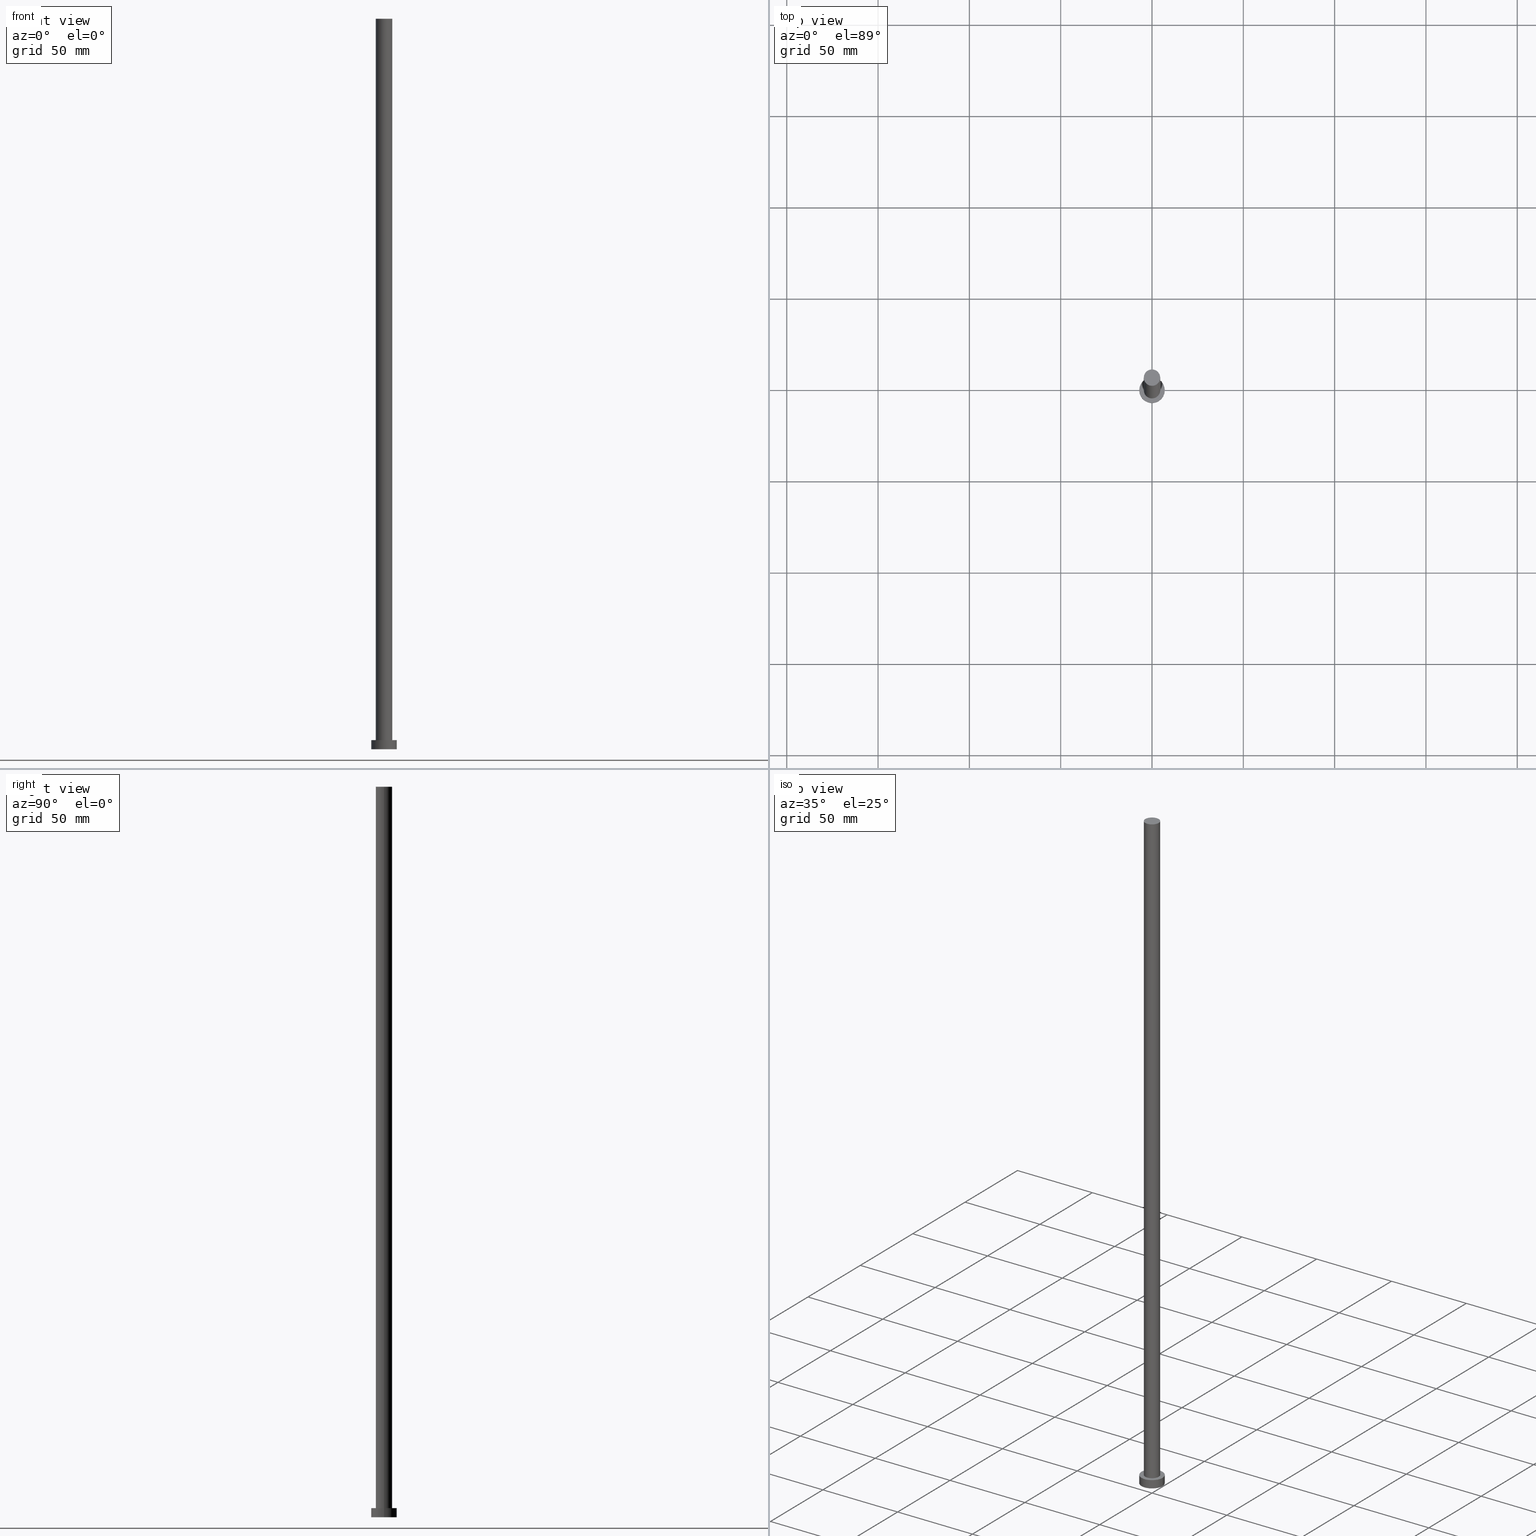
[diagram: canonical four-view strip — front | top / right | iso, engineering-drawing reading convention]
A machine part, canonical four-view strip (front | top / right | iso — engineering-drawing reading convention). The complete STEP part file that produces these views, byte-faithful:
ISO-10303-21;
HEADER;
FILE_DESCRIPTION (( 'STEP AP203' ),
    '1' );
FILE_NAME ('af12.STEP',
    '2023-02-13T12:07:59',
    ( '' ),
    ( '' ),
    'SwSTEP 2.0',
    'SolidWorks 2019',
    '' );
FILE_SCHEMA (( 'CONFIG_CONTROL_DESIGN' ));
ENDSEC;

DATA;
#1 = EDGE_LOOP ( 'NONE', ( #127, #47 ) ) ;
#2 = VERTEX_POINT ( 'NONE', #144 ) ;
#3 = DESIGN_CONTEXT ( 'detailed design', #35, 'design' ) ;
#4 = ORIENTED_EDGE ( 'NONE', *, *, #179, .T. ) ;
#5 = CARTESIAN_POINT ( 'NONE',  ( 4.500000000000000888, 5.510910596163088569E-16, 400.0000000000000000 ) ) ;
#6 = CC_DESIGN_PERSON_AND_ORGANIZATION_ASSIGNMENT ( #9, #8, ( #225 ) ) ;
#7 = VERTEX_POINT ( 'NONE', #172 ) ;
#8 = PERSON_AND_ORGANIZATION_ROLE ( 'creator' ) ;
#9 = PERSON_AND_ORGANIZATION ( #131, #162 ) ;
#10 = CLOSED_SHELL ( 'NONE', ( #113, #105, #240, #207, #27, #137, #167 ) ) ;
#11 = DATE_TIME_ROLE ( 'classification_date' ) ;
#12 = CYLINDRICAL_SURFACE ( 'NONE', #140, 7.000000000000000000 ) ;
#13 = DIRECTION ( 'NONE',  ( 1.000000000000000000, 0.000000000000000000, 0.000000000000000000 ) ) ;
#14 = FACE_OUTER_BOUND ( 'NONE', #95, .T. ) ;
#15 = CALENDAR_DATE ( 2023, 13, 2 ) ;
#16 = CARTESIAN_POINT ( 'NONE',  ( 0.000000000000000000, 0.000000000000000000, 5.000000000000000000 ) ) ;
#17 = DIRECTION ( 'NONE',  ( 1.000000000000000000, 0.000000000000000000, 0.000000000000000000 ) ) ;
#18 = DIRECTION ( 'NONE',  ( 0.000000000000000000, 0.000000000000000000, 1.000000000000000000 ) ) ;
#19 = ORIENTED_EDGE ( 'NONE', *, *, #60, .F. ) ;
#20 = AXIS2_PLACEMENT_3D ( 'NONE', #99, #98, #13 ) ;
#21 = DIRECTION ( 'NONE',  ( -0.000000000000000000, -0.000000000000000000, -1.000000000000000000 ) ) ;
#22 = CARTESIAN_POINT ( 'NONE',  ( -7.000000000000000000, 0.000000000000000000, 0.000000000000000000 ) ) ;
#23 = APPROVAL_ROLE ( '' ) ;
#24 = CC_DESIGN_SECURITY_CLASSIFICATION ( #129, ( #44 ) ) ;
#25 = CC_DESIGN_DATE_AND_TIME_ASSIGNMENT ( #198, #118, ( #225 ) ) ;
#26 = CALENDAR_DATE ( 2023, 13, 2 ) ;
#27 = ADVANCED_FACE ( 'NONE', ( #38 ), #215, .F. ) ;
#28 = FACE_OUTER_BOUND ( 'NONE', #134, .T. ) ;
#29 = APPROVAL_STATUS ( 'not_yet_approved' ) ;
#30 = VERTEX_POINT ( 'NONE', #114 ) ;
#31 = AXIS2_PLACEMENT_3D ( 'NONE', #247, #18, #17 ) ;
#32 = MECHANICAL_CONTEXT ( 'NONE', #122, 'mechanical' ) ;
#33 = CARTESIAN_POINT ( 'NONE',  ( 0.000000000000000000, 0.000000000000000000, 400.0000000000000000 ) ) ;
#34 = DIRECTION ( 'NONE',  ( 0.000000000000000000, 0.000000000000000000, 1.000000000000000000 ) ) ;
#35 = APPLICATION_CONTEXT ( 'configuration controlled 3d designs of mechanical parts and assemblies' ) ;
#36 = CARTESIAN_POINT ( 'NONE',  ( 0.000000000000000000, 0.000000000000000000, 5.000000000000000000 ) ) ;
#37 = DIRECTION ( 'NONE',  ( 1.000000000000000000, 0.000000000000000000, -0.000000000000000000 ) ) ;
#38 = FACE_OUTER_BOUND ( 'NONE', #255, .T. ) ;
#39 = CIRCLE ( 'NONE', #120, 7.000000000000000000 ) ;
#40 = VERTEX_POINT ( 'NONE', #22 ) ;
#41 = CALENDAR_DATE ( 2023, 13, 2 ) ;
#42 = EDGE_CURVE ( 'NONE', #7, #90, #241, .T. ) ;
#43 = CIRCLE ( 'NONE', #72, 4.500000000000000888 ) ;
#44 = PRODUCT_DEFINITION_FORMATION_WITH_SPECIFIED_SOURCE ( 'LIBOVOLN�', '', #157, .NOT_KNOWN. ) ;
#45 = PERSON_AND_ORGANIZATION ( #131, #162 ) ;
#46 = DIRECTION ( 'NONE',  ( -0.000000000000000000, -0.000000000000000000, -1.000000000000000000 ) ) ;
#47 = ORIENTED_EDGE ( 'NONE', *, *, #235, .T. ) ;
#48 = VECTOR ( 'NONE', #243, 1000.000000000000000 ) ;
#49 = COORDINATED_UNIVERSAL_TIME_OFFSET ( 1, 0, .AHEAD. ) ;
#50 = FACE_BOUND ( 'NONE', #213, .T. ) ;
#51 = DIRECTION ( 'NONE',  ( 1.000000000000000000, 0.000000000000000000, -0.000000000000000000 ) ) ;
#52 = CARTESIAN_POINT ( 'NONE',  ( 0.000000000000000000, 0.000000000000000000, 5.000000000000000000 ) ) ;
#53 = DIRECTION ( 'NONE',  ( 1.000000000000000000, 0.000000000000000000, 0.000000000000000000 ) ) ;
#54 = VERTEX_POINT ( 'NONE', #5 ) ;
#55 = VERTEX_POINT ( 'NONE', #156 ) ;
#56 = CYLINDRICAL_SURFACE ( 'NONE', #76, 4.500000000000000888 ) ;
#57 = VECTOR ( 'NONE', #239, 1000.000000000000000 ) ;
#58 = CARTESIAN_POINT ( 'NONE',  ( 0.000000000000000000, 0.000000000000000000, 0.000000000000000000 ) ) ;
#59 = AXIS2_PLACEMENT_3D ( 'NONE', #89, #88, #253 ) ;
#60 = EDGE_CURVE ( 'NONE', #40, #90, #233, .T. ) ;
#61 = APPLICATION_PROTOCOL_DEFINITION ( 'international standard', 'config_control_design', 1994, #122 ) ;
#62 = LINE ( 'NONE', #224, #201 ) ;
#63 = DATE_AND_TIME ( #128, #135 ) ;
#64 = CARTESIAN_POINT ( 'NONE',  ( 4.500000000000000888, 5.510910596163088569E-16, 5.000000000000000000 ) ) ;
#65 = AXIS2_PLACEMENT_3D ( 'NONE', #206, #107, #183 ) ;
#66 = DIRECTION ( 'NONE',  ( 0.000000000000000000, 0.000000000000000000, 1.000000000000000000 ) ) ;
#67 = APPROVAL ( #181, 'NEUR�EN�' ) ;
#68 = FACE_OUTER_BOUND ( 'NONE', #1, .T. ) ;
#69 = EDGE_CURVE ( 'NONE', #54, #234, #138, .T. ) ;
#70 = CIRCLE ( 'NONE', #91, 4.500000000000000888 ) ;
#71 = APPROVAL ( #29, 'NEUR�EN�' ) ;
#72 = AXIS2_PLACEMENT_3D ( 'NONE', #33, #205, #104 ) ;
#73 = ORIENTED_EDGE ( 'NONE', *, *, #42, .T. ) ;
#74 = CC_DESIGN_APPROVAL ( #71, ( #129 ) ) ;
#75 = ORIENTED_EDGE ( 'NONE', *, *, #254, .F. ) ;
#76 = AXIS2_PLACEMENT_3D ( 'NONE', #217, #21, #246 ) ;
#77 = CARTESIAN_POINT ( 'NONE',  ( 0.000000000000000000, 0.000000000000000000, 0.000000000000000000 ) ) ;
#78 = APPROVAL_ROLE ( '' ) ;
#79 = DATE_AND_TIME ( #142, #185 ) ;
#80 = PERSON_AND_ORGANIZATION ( #131, #162 ) ;
#81 = LOCAL_TIME ( 13, 7, 59.00000000000000000, #197 ) ;
#82 = DIRECTION ( 'NONE',  ( 1.000000000000000000, 0.000000000000000000, 0.000000000000000000 ) ) ;
#83 = APPROVAL_STATUS ( 'not_yet_approved' ) ;
#84 = DIRECTION ( 'NONE',  ( -0.000000000000000000, -0.000000000000000000, -1.000000000000000000 ) ) ;
#85 = EDGE_CURVE ( 'NONE', #30, #40, #155, .T. ) ;
#86 = COORDINATED_UNIVERSAL_TIME_OFFSET ( 1, 0, .AHEAD. ) ;
#87 = CARTESIAN_POINT ( 'NONE',  ( 0.000000000000000000, 0.000000000000000000, 5.000000000000000000 ) ) ;
#88 = DIRECTION ( 'NONE',  ( 0.000000000000000000, 0.000000000000000000, 1.000000000000000000 ) ) ;
#89 = CARTESIAN_POINT ( 'NONE',  ( 0.000000000000000000, 0.000000000000000000, 400.0000000000000000 ) ) ;
#90 = VERTEX_POINT ( 'NONE', #125 ) ;
#91 = AXIS2_PLACEMENT_3D ( 'NONE', #16, #182, #166 ) ;
#92 = CC_DESIGN_PERSON_AND_ORGANIZATION_ASSIGNMENT ( #200, #147, ( #44 ) ) ;
#93 = ORIENTED_EDGE ( 'NONE', *, *, #235, .F. ) ;
#94 = EDGE_CURVE ( 'NONE', #2, #55, #62, .T. ) ;
#95 = EDGE_LOOP ( 'NONE', ( #93, #238, #153, #202 ) ) ;
#96 = DIRECTION ( 'NONE',  ( 0.000000000000000000, 0.000000000000000000, 1.000000000000000000 ) ) ;
#97 = CC_DESIGN_APPROVAL ( #237, ( #44 ) ) ;
#98 = DIRECTION ( 'NONE',  ( 0.000000000000000000, 0.000000000000000000, 1.000000000000000000 ) ) ;
#99 = CARTESIAN_POINT ( 'NONE',  ( 0.000000000000000000, 0.000000000000000000, 0.000000000000000000 ) ) ;
#100 = PERSON_AND_ORGANIZATION_ROLE ( 'creator' ) ;
#101 = CARTESIAN_POINT ( 'NONE',  ( -7.000000000000000000, 0.000000000000000000, 5.000000000000000000 ) ) ;
#102 = SHAPE_DEFINITION_REPRESENTATION ( #196, #106 ) ;
#103 = ORIENTED_EDGE ( 'NONE', *, *, #179, .F. ) ;
#104 = DIRECTION ( 'NONE',  ( 1.000000000000000000, 0.000000000000000000, 0.000000000000000000 ) ) ;
#105 = ADVANCED_FACE ( 'NONE', ( #28 ), #12, .T. ) ;
#106 = ADVANCED_BREP_SHAPE_REPRESENTATION ( 'af12', ( #184, #20 ), #214 ) ;
#107 = DIRECTION ( 'NONE',  ( -0.000000000000000000, -0.000000000000000000, -1.000000000000000000 ) ) ;
#108 = CIRCLE ( 'NONE', #251, 7.000000000000000000 ) ;
#109 = CARTESIAN_POINT ( 'NONE',  ( 0.000000000000000000, 0.000000000000000000, 0.000000000000000000 ) ) ;
#110 = CC_DESIGN_APPROVAL ( #67, ( #225 ) ) ;
#111 = ORIENTED_EDGE ( 'NONE', *, *, #218, .F. ) ;
#112 = ORIENTED_EDGE ( 'NONE', *, *, #94, .T. ) ;
#113 = ADVANCED_FACE ( 'NONE', ( #14 ), #56, .T. ) ;
#114 = CARTESIAN_POINT ( 'NONE',  ( -7.000000000000000000, 0.000000000000000000, 5.000000000000000000 ) ) ;
#115 = AXIS2_PLACEMENT_3D ( 'NONE', #77, #96, #82 ) ;
#116 = EDGE_LOOP ( 'NONE', ( #4, #209 ) ) ;
#117 = ORIENTED_EDGE ( 'NONE', *, *, #160, .T. ) ;
#118 = DATE_TIME_ROLE ( 'creation_date' ) ;
#119 = AXIS2_PLACEMENT_3D ( 'NONE', #231, #130, #230 ) ;
#120 = AXIS2_PLACEMENT_3D ( 'NONE', #109, #252, #53 ) ;
#121 = PERSON_AND_ORGANIZATION ( #131, #162 ) ;
#122 = APPLICATION_CONTEXT ( 'configuration controlled 3d designs of mechanical parts and assemblies' ) ;
#123 = PRODUCT_RELATED_PRODUCT_CATEGORY ( 'detail', '', ( #157 ) ) ;
#124 = APPLICATION_PROTOCOL_DEFINITION ( 'international standard', 'config_control_design', 1994, #35 ) ;
#125 = CARTESIAN_POINT ( 'NONE',  ( 7.000000000000000000, 8.572527594031473190E-16, 0.000000000000000000 ) ) ;
#126 = PERSON_AND_ORGANIZATION_ROLE ( 'design_owner' ) ;
#127 = ORIENTED_EDGE ( 'NONE', *, *, #177, .T. ) ;
#128 = CALENDAR_DATE ( 2023, 13, 2 ) ;
#129 = SECURITY_CLASSIFICATION ( '', '', #228 ) ;
#130 = DIRECTION ( 'NONE',  ( 0.000000000000000000, 0.000000000000000000, 1.000000000000000000 ) ) ;
#131 = PERSON ( 'NEUR�EN�', 'NEUR�EN�', 'NEUR�EN�', ('NEUR�EN�'), ('NEUR�EN�'), ('NEUR�EN�') ) ;
#132 = FACE_OUTER_BOUND ( 'NONE', #194, .T. ) ;
#133 = DIRECTION ( 'NONE',  ( 1.000000000000000000, 0.000000000000000000, 0.000000000000000000 ) ) ;
#134 = EDGE_LOOP ( 'NONE', ( #75, #73, #180, #199 ) ) ;
#135 = LOCAL_TIME ( 13, 7, 59.00000000000000000, #49 ) ;
#136 = ORIENTED_EDGE ( 'NONE', *, *, #60, .T. ) ;
#137 = ADVANCED_FACE ( 'NONE', ( #146 ), #227, .T. ) ;
#138 = LINE ( 'NONE', #173, #242 ) ;
#139 = CC_DESIGN_PERSON_AND_ORGANIZATION_ASSIGNMENT ( #45, #126, ( #157 ) ) ;
#140 = AXIS2_PLACEMENT_3D ( 'NONE', #163, #84, #193 ) ;
#141 = DIRECTION ( 'NONE',  ( 0.000000000000000000, 0.000000000000000000, 1.000000000000000000 ) ) ;
#142 = CALENDAR_DATE ( 2023, 13, 2 ) ;
#143 = LOCAL_TIME ( 13, 7, 59.00000000000000000, #175 ) ;
#144 = CARTESIAN_POINT ( 'NONE',  ( -4.500000000000000888, 0.000000000000000000, 400.0000000000000000 ) ) ;
#145 = APPROVAL_DATE_TIME ( #244, #67 ) ;
#146 = FACE_OUTER_BOUND ( 'NONE', #191, .T. ) ;
#147 = PERSON_AND_ORGANIZATION_ROLE ( 'design_supplier' ) ;
#148 = CARTESIAN_POINT ( 'NONE',  ( 0.000000000000000000, 0.000000000000000000, 400.0000000000000000 ) ) ;
#149 = AXIS2_PLACEMENT_3D ( 'NONE', #87, #34, #152 ) ;
#150 = DIRECTION ( 'NONE',  ( -0.000000000000000000, -0.000000000000000000, -1.000000000000000000 ) ) ;
#151 = DIRECTION ( 'NONE',  ( -1.000000000000000000, 0.000000000000000000, 0.000000000000000000 ) ) ;
#152 = DIRECTION ( 'NONE',  ( 1.000000000000000000, 0.000000000000000000, 0.000000000000000000 ) ) ;
#153 = ORIENTED_EDGE ( 'NONE', *, *, #187, .T. ) ;
#154 = UNCERTAINTY_MEASURE_WITH_UNIT (LENGTH_MEASURE( 1.000000000000000082E-05 ), #168, 'distance_accuracy_value', 'NONE');
#155 = LINE ( 'NONE', #101, #48 ) ;
#156 = CARTESIAN_POINT ( 'NONE',  ( -4.500000000000000888, 0.000000000000000000, 5.000000000000000000 ) ) ;
#157 = PRODUCT ( 'af12', 'af12', '', ( #32 ) ) ;
#158 = DIRECTION ( 'NONE',  ( -0.000000000000000000, -0.000000000000000000, -1.000000000000000000 ) ) ;
#159 =( NAMED_UNIT ( * ) SI_UNIT ( $, .STERADIAN. ) SOLID_ANGLE_UNIT ( ) );
#160 = EDGE_CURVE ( 'NONE', #55, #234, #236, .T. ) ;
#161 = PERSON_AND_ORGANIZATION ( #131, #162 ) ;
#162 = ORGANIZATION ( 'NEUR�EN�', 'NEUR�EN�', '' ) ;
#163 = CARTESIAN_POINT ( 'NONE',  ( 0.000000000000000000, 0.000000000000000000, 5.000000000000000000 ) ) ;
#164 = ORIENTED_EDGE ( 'NONE', *, *, #187, .F. ) ;
#165 = APPROVAL_ROLE ( '' ) ;
#166 = DIRECTION ( 'NONE',  ( 1.000000000000000000, 0.000000000000000000, 0.000000000000000000 ) ) ;
#167 = ADVANCED_FACE ( 'NONE', ( #68 ), #186, .T. ) ;
#168 =( LENGTH_UNIT ( ) NAMED_UNIT ( * ) SI_UNIT ( .MILLI., .METRE. ) );
#169 = ORIENTED_EDGE ( 'NONE', *, *, #69, .F. ) ;
#170 = APPROVAL_PERSON_ORGANIZATION ( #248, #237, #78 ) ;
#171 = CARTESIAN_POINT ( 'NONE',  ( 7.000000000000000000, 8.572527594031473190E-16, 5.000000000000000000 ) ) ;
#172 = CARTESIAN_POINT ( 'NONE',  ( 7.000000000000000000, 8.572527594031473190E-16, 5.000000000000000000 ) ) ;
#173 = CARTESIAN_POINT ( 'NONE',  ( 4.500000000000000888, 5.510910596163088569E-16, 400.0000000000000000 ) ) ;
#174 = AXIS2_PLACEMENT_3D ( 'NONE', #36, #250, #51 ) ;
#175 = COORDINATED_UNIVERSAL_TIME_OFFSET ( 1, 0, .AHEAD. ) ;
#176 = PERSON_AND_ORGANIZATION_ROLE ( 'classification_officer' ) ;
#177 = EDGE_CURVE ( 'NONE', #2, #54, #43, .T. ) ;
#178 = DATE_AND_TIME ( #26, #81 ) ;
#179 = EDGE_CURVE ( 'NONE', #30, #7, #108, .T. ) ;
#180 = ORIENTED_EDGE ( 'NONE', *, *, #218, .T. ) ;
#181 = APPROVAL_STATUS ( 'not_yet_approved' ) ;
#182 = DIRECTION ( 'NONE',  ( 0.000000000000000000, 0.000000000000000000, 1.000000000000000000 ) ) ;
#183 = DIRECTION ( 'NONE',  ( -1.000000000000000000, 0.000000000000000000, 0.000000000000000000 ) ) ;
#184 = MANIFOLD_SOLID_BREP ( 'P�idat vysunut�m3', #10 ) ;
#185 = LOCAL_TIME ( 13, 7, 59.00000000000000000, #86 ) ;
#186 = PLANE ( 'NONE',  #119 ) ;
#187 = EDGE_CURVE ( 'NONE', #234, #55, #70, .T. ) ;
#188 = ORIENTED_EDGE ( 'NONE', *, *, #160, .F. ) ;
#189 = CC_DESIGN_DATE_AND_TIME_ASSIGNMENT ( #178, #11, ( #129 ) ) ;
#190 = ORIENTED_EDGE ( 'NONE', *, *, #42, .F. ) ;
#191 = EDGE_LOOP ( 'NONE', ( #169, #220, #112, #117 ) ) ;
#192 = AXIS2_PLACEMENT_3D ( 'NONE', #58, #141, #37 ) ;
#193 = DIRECTION ( 'NONE',  ( -1.000000000000000000, 0.000000000000000000, 0.000000000000000000 ) ) ;
#194 = EDGE_LOOP ( 'NONE', ( #190, #103, #211, #136 ) ) ;
#195 =( NAMED_UNIT ( * ) PLANE_ANGLE_UNIT ( ) SI_UNIT ( $, .RADIAN. ) );
#196 = PRODUCT_DEFINITION_SHAPE ( 'NONE', 'NONE',  #225 ) ;
#197 = COORDINATED_UNIVERSAL_TIME_OFFSET ( 1, 0, .AHEAD. ) ;
#198 = DATE_AND_TIME ( #15, #143 ) ;
#199 = ORIENTED_EDGE ( 'NONE', *, *, #85, .F. ) ;
#200 = PERSON_AND_ORGANIZATION ( #131, #162 ) ;
#201 = VECTOR ( 'NONE', #46, 1000.000000000000000 ) ;
#202 = ORIENTED_EDGE ( 'NONE', *, *, #94, .F. ) ;
#203 = APPROVAL_PERSON_ORGANIZATION ( #204, #67, #23 ) ;
#204 = PERSON_AND_ORGANIZATION ( #131, #162 ) ;
#205 = DIRECTION ( 'NONE',  ( 0.000000000000000000, 0.000000000000000000, 1.000000000000000000 ) ) ;
#206 = CARTESIAN_POINT ( 'NONE',  ( 0.000000000000000000, 0.000000000000000000, 5.000000000000000000 ) ) ;
#207 = ADVANCED_FACE ( 'NONE', ( #50, #208 ), #232, .T. ) ;
#208 = FACE_OUTER_BOUND ( 'NONE', #116, .T. ) ;
#209 = ORIENTED_EDGE ( 'NONE', *, *, #254, .T. ) ;
#210 = APPROVAL_PERSON_ORGANIZATION ( #80, #71, #165 ) ;
#211 = ORIENTED_EDGE ( 'NONE', *, *, #85, .T. ) ;
#212 = CC_DESIGN_PERSON_AND_ORGANIZATION_ASSIGNMENT ( #161, #100, ( #44 ) ) ;
#213 = EDGE_LOOP ( 'NONE', ( #188, #164 ) ) ;
#214 =( GEOMETRIC_REPRESENTATION_CONTEXT ( 3 ) GLOBAL_UNCERTAINTY_ASSIGNED_CONTEXT ( ( #154 ) ) GLOBAL_UNIT_ASSIGNED_CONTEXT ( ( #168, #195, #159 ) ) REPRESENTATION_CONTEXT ( 'NONE', 'WORKASPACE' ) );
#215 = PLANE ( 'NONE',  #192 ) ;
#216 = CC_DESIGN_PERSON_AND_ORGANIZATION_ASSIGNMENT ( #121, #176, ( #129 ) ) ;
#217 = CARTESIAN_POINT ( 'NONE',  ( 0.000000000000000000, 0.000000000000000000, 400.0000000000000000 ) ) ;
#218 = EDGE_CURVE ( 'NONE', #90, #40, #39, .T. ) ;
#219 = CIRCLE ( 'NONE', #31, 7.000000000000000000 ) ;
#220 = ORIENTED_EDGE ( 'NONE', *, *, #177, .F. ) ;
#221 = COORDINATED_UNIVERSAL_TIME_OFFSET ( 1, 0, .AHEAD. ) ;
#222 = APPROVAL_DATE_TIME ( #79, #237 ) ;
#223 = CIRCLE ( 'NONE', #59, 4.500000000000000888 ) ;
#224 = CARTESIAN_POINT ( 'NONE',  ( -4.500000000000000888, 0.000000000000000000, 400.0000000000000000 ) ) ;
#225 = PRODUCT_DEFINITION ( 'NEZN�M�', '', #44, #3 ) ;
#226 = APPROVAL_DATE_TIME ( #63, #71 ) ;
#227 = CYLINDRICAL_SURFACE ( 'NONE', #249, 4.500000000000000888 ) ;
#228 = SECURITY_CLASSIFICATION_LEVEL ( 'unclassified' ) ;
#229 = CYLINDRICAL_SURFACE ( 'NONE', #65, 7.000000000000000000 ) ;
#230 = DIRECTION ( 'NONE',  ( 1.000000000000000000, 0.000000000000000000, -0.000000000000000000 ) ) ;
#231 = CARTESIAN_POINT ( 'NONE',  ( 0.000000000000000000, 0.000000000000000000, 400.0000000000000000 ) ) ;
#232 = PLANE ( 'NONE',  #174 ) ;
#233 = CIRCLE ( 'NONE', #115, 7.000000000000000000 ) ;
#234 = VERTEX_POINT ( 'NONE', #64 ) ;
#235 = EDGE_CURVE ( 'NONE', #54, #2, #223, .T. ) ;
#236 = CIRCLE ( 'NONE', #149, 4.500000000000000888 ) ;
#237 = APPROVAL ( #83, 'NEUR�EN�' ) ;
#238 = ORIENTED_EDGE ( 'NONE', *, *, #69, .T. ) ;
#239 = DIRECTION ( 'NONE',  ( -0.000000000000000000, -0.000000000000000000, -1.000000000000000000 ) ) ;
#240 = ADVANCED_FACE ( 'NONE', ( #132 ), #229, .T. ) ;
#241 = LINE ( 'NONE', #171, #57 ) ;
#242 = VECTOR ( 'NONE', #158, 1000.000000000000000 ) ;
#243 = DIRECTION ( 'NONE',  ( -0.000000000000000000, -0.000000000000000000, -1.000000000000000000 ) ) ;
#244 = DATE_AND_TIME ( #41, #245 ) ;
#245 = LOCAL_TIME ( 13, 7, 59.00000000000000000, #221 ) ;
#246 = DIRECTION ( 'NONE',  ( -1.000000000000000000, 0.000000000000000000, 0.000000000000000000 ) ) ;
#247 = CARTESIAN_POINT ( 'NONE',  ( 0.000000000000000000, 0.000000000000000000, 5.000000000000000000 ) ) ;
#248 = PERSON_AND_ORGANIZATION ( #131, #162 ) ;
#249 = AXIS2_PLACEMENT_3D ( 'NONE', #148, #150, #151 ) ;
#250 = DIRECTION ( 'NONE',  ( 0.000000000000000000, 0.000000000000000000, 1.000000000000000000 ) ) ;
#251 = AXIS2_PLACEMENT_3D ( 'NONE', #52, #66, #133 ) ;
#252 = DIRECTION ( 'NONE',  ( 0.000000000000000000, 0.000000000000000000, 1.000000000000000000 ) ) ;
#253 = DIRECTION ( 'NONE',  ( 1.000000000000000000, 0.000000000000000000, 0.000000000000000000 ) ) ;
#254 = EDGE_CURVE ( 'NONE', #7, #30, #219, .T. ) ;
#255 = EDGE_LOOP ( 'NONE', ( #19, #111 ) ) ;
ENDSEC;
END-ISO-10303-21;
